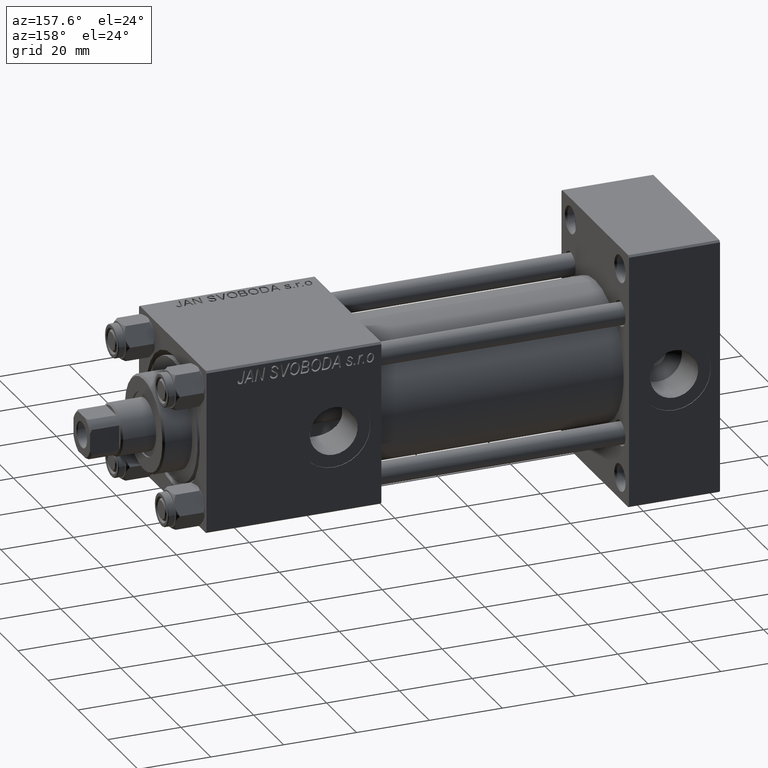
[diagram: clean part render]
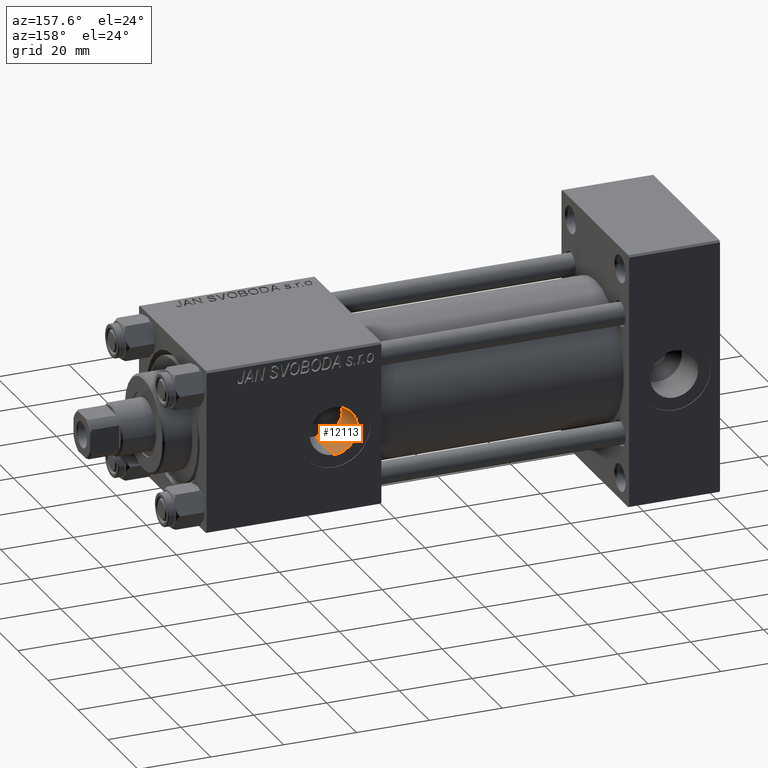
[diagram: same view with one face highlighted and labeled with its STEP entity id]
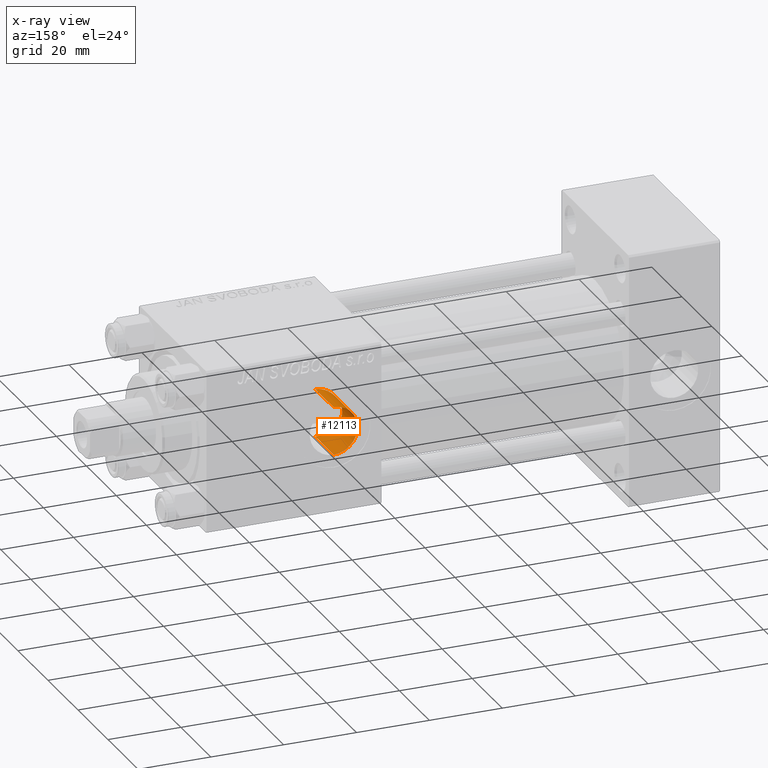
[diagram: x-ray of the same camera — body ghosted, the highlighted face saturated]
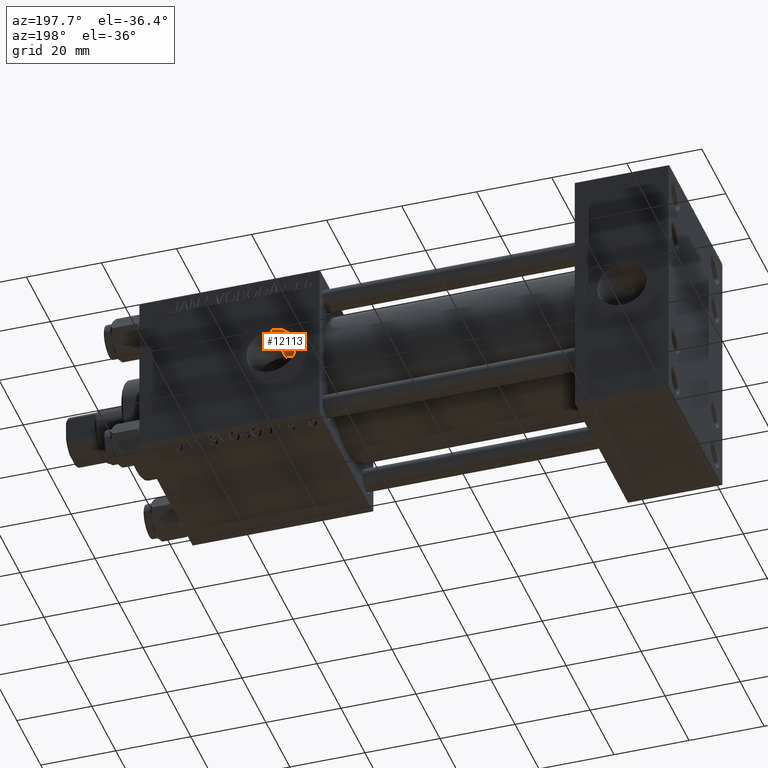
[diagram: same view with one face highlighted and labeled with its STEP entity id]
A machine part, auxiliary view. The second image highlights one B-rep face of the part: STEP entity #12113.
The next image is the same camera in x-ray: the body ghosted, the highlighted face saturated — about 0% of this face is hidden behind the body in this view.
A second angle (auxiliary view) of the same face is appended — the face is thin or edge-on in the first view.
In plain terms, the highlighted cylindrical surface (edge-blend (fillet) strip) has radius 6.58 mm, axis along (0, 1, 0).
Its self-contained STEP definition (entity closure, byte-faithful):
#697 = CARTESIAN_POINT ( 'NONE',  ( 104.9026555007573904, 10.09272257990949839, -6.491501553408994596 ) ) ;
#973 = ORIENTED_EDGE ( 'NONE', *, *, #37273, .T. ) ;
#1283 = EDGE_CURVE ( 'NONE', #11785, #24016, #19477, .T. ) ;
#2948 = ORIENTED_EDGE ( 'NONE', *, *, #29689, .T. ) ;
#5661 = CARTESIAN_POINT ( 'NONE',  ( 104.4761413384147772, 10.14795690498758773, -6.404811640278047058 ) ) ;
#6153 = CARTESIAN_POINT ( 'NONE',  ( 101.9790530252927425, 10.80966661710888133, -5.212788743056521845 ) ) ;
#7335 = EDGE_CURVE ( 'NONE', #12574, #11785, #35018, .T. ) ;
#8010 = DIRECTION ( 'NONE',  ( 0.000000000000000000, 1.000000000000000000, 0.000000000000000000 ) ) ;
#8271 = CARTESIAN_POINT ( 'NONE',  ( 105.7808140535749573, 10.03511833512689400, -6.580000000000003624 ) ) ;
#9190 = CARTESIAN_POINT ( 'NONE',  ( 99.42021085946413450, 11.99988437873642511, -0.4415083905740621595 ) ) ;
#9399 = DIRECTION ( 'NONE',  ( 0.000000000000000000, 0.000000000000000000, 1.000000000000000000 ) ) ;
#9948 = CARTESIAN_POINT ( 'NONE',  ( 103.0510431280197565, 10.45235325324470388, -5.897951781794918524 ) ) ;
#11785 = VERTEX_POINT ( 'NONE', #17322 ) ;
#12070 = CARTESIAN_POINT ( 'NONE',  ( 100.3033527628751074, 11.53738015798572114, -3.320885605816854103 ) ) ;
#12113 = ADVANCED_FACE ( 'NONE', ( #36188 ), #47791, .F. ) ;
#12574 = VERTEX_POINT ( 'NONE', #34306 ) ;
#12755 = ORIENTED_EDGE ( 'NONE', *, *, #1283, .F. ) ;
#13079 = ORIENTED_EDGE ( 'NONE', *, *, #7335, .F. ) ;
#13736 = CARTESIAN_POINT ( 'NONE',  ( 105.1190907691257337, 10.07132008303893400, -6.524508665183240907 ) ) ;
#13934 = DIRECTION ( 'NONE',  ( -0.000000000000000000, 1.000000000000000000, -0.000000000000000000 ) ) ;
#13977 = CARTESIAN_POINT ( 'NONE',  ( 101.9808194095023453, 10.80498217344098855, 5.227144681522187142 ) ) ;
#14479 = CARTESIAN_POINT ( 'NONE',  ( 103.0690707820880760, 10.45284026323419191, 5.895033264191283706 ) ) ;
#15750 = CIRCLE ( 'NONE', #17366, 6.580000000000002736 ) ;
#17008 = CARTESIAN_POINT ( 'NONE',  ( 99.46469131803905839, 11.97532927873728958, 0.8814389111818397016 ) ) ;
#17322 = CARTESIAN_POINT ( 'NONE',  ( 106.0000000000000000, 10.03511833512689755, 6.580000000000002736 ) ) ;
#17366 = AXIS2_PLACEMENT_3D ( 'NONE', #30971, #8010, #22638 ) ;
#17735 = CARTESIAN_POINT ( 'NONE',  ( 106.0000000000000000, 22.30000000000000426, 6.580000000000002736 ) ) ;
#18251 = CARTESIAN_POINT ( 'NONE',  ( 103.2609984649942731, 10.40045460118916054, 5.986622394672212799 ) ) ;
#18733 = CARTESIAN_POINT ( 'NONE',  ( 102.6939754610107087, 10.56415267499855304, 5.693150710628732014 ) ) ;
#19477 = LINE ( 'NONE', #31846, #23857 ) ;
#20804 = CARTESIAN_POINT ( 'NONE',  ( 99.59478156013234695, 11.90500205299394310, -1.522465113034440432 ) ) ;
#21050 = CARTESIAN_POINT ( 'NONE',  ( 101.0591469749664384, 11.18222718872542920, 4.365987520544764244 ) ) ;
#21552 = CARTESIAN_POINT ( 'NONE',  ( 101.4966336964843094, 10.99844243115061460, -4.802106935643950081 ) ) ;
#22540 = CARTESIAN_POINT ( 'NONE',  ( 104.2613787208470200, 10.17559587363118112, 6.361448434608369062 ) ) ;
#22638 = DIRECTION ( 'NONE',  ( 0.000000000000000000, 0.000000000000000000, 1.000000000000000000 ) ) ;
#23665 = CARTESIAN_POINT ( 'NONE',  ( 100.1004084834657704, 11.63995794439685483, -2.945230401312897150 ) ) ;
#23857 = VECTOR ( 'NONE', #27566, 1000.000000000000000 ) ;
#24016 = VERTEX_POINT ( 'NONE', #17735 ) ;
#24589 = CARTESIAN_POINT ( 'NONE',  ( 99.41979065215333833, 12.00011479239335088, 0.4352007943146000701 ) ) ;
#24841 = CARTESIAN_POINT ( 'NONE',  ( 100.3095047893206555, 11.53436838845257917, 3.330952691599677884 ) ) ;
#25337 = CARTESIAN_POINT ( 'NONE',  ( 102.6778844470711789, 10.56555453414760493, -5.695588259402676101 ) ) ;
#25918 = VECTOR ( 'NONE', #13934, 1000.000000000000000 ) ;
#26244 = CARTESIAN_POINT ( 'NONE',  ( 106.0000000000000000, 22.30000000000000426, -6.580000000000002736 ) ) ;
#27566 = DIRECTION ( 'NONE',  ( -0.000000000000000000, 1.000000000000000000, -0.000000000000000000 ) ) ;
#27697 = CARTESIAN_POINT ( 'NONE',  ( 104.2660629811777540, 10.18178878898818596, -6.351126472267992540 ) ) ;
#28626 = CARTESIAN_POINT ( 'NONE',  ( 99.76700656778703546, 11.81240356407410275, 2.153087175559377453 ) ) ;
#29087 = CARTESIAN_POINT ( 'NONE',  ( 106.0000000000000000, -18.61105048082993818, 0.000000000000000000 ) ) ;
#29631 = CARTESIAN_POINT ( 'NONE',  ( 106.0000000000000000, 10.03511833512689755, 6.580000000000002736 ) ) ;
#29689 = EDGE_CURVE ( 'NONE', #12574, #41193, #33387, .T. ) ;
#30971 = CARTESIAN_POINT ( 'NONE',  ( 106.0000000000000000, 22.30000000000000426, 0.000000000000000000 ) ) ;
#31251 = CARTESIAN_POINT ( 'NONE',  ( 101.0508812765204709, 11.18591469348257306, -4.356510094204550043 ) ) ;
#31501 = CARTESIAN_POINT ( 'NONE',  ( 99.77782898074842421, 11.80745777538545482, -2.151301849430347080 ) ) ;
#31846 = CARTESIAN_POINT ( 'NONE',  ( 106.0000000000000000, -18.61105048082993818, 6.580000000000002736 ) ) ;
#32929 = CARTESIAN_POINT ( 'NONE',  ( 105.5587345323282449, 10.04242014431498475, -6.568903955922261062 ) ) ;
#33387 = LINE ( 'NONE', #48557, #25918 ) ;
#33920 = CARTESIAN_POINT ( 'NONE',  ( 105.1257057613069037, 10.06401201544136903, 6.536546467569312568 ) ) ;
#34166 = CARTESIAN_POINT ( 'NONE',  ( 105.5626811284030850, 10.03511833512689400, 6.579999999999999183 ) ) ;
#34306 = CARTESIAN_POINT ( 'NONE',  ( 106.0000000000000000, 10.03511833512689755, -6.580000000000002736 ) ) ;
#35018 = B_SPLINE_CURVE_WITH_KNOTS ( 'NONE', 3,
 ( #36979, #8271, #32929, #13736, #697, #5661, #27697, #40025, #44551, #9948, #25337, #40766, #6153, #35308, #21552, #31251, #46672, #12070, #23665, #39092, #31501, #46916, #20804, #43124, #9190, #24589, #17008, #47840, #28626, #44047, #24841, #40275, #21050, #36481, #13977, #37468, #18733, #14479, #18251, #41259, #22540, #33920, #34166, #29631 ),
 .UNSPECIFIED., .F., .F.,
 ( 4, 2, 2, 2, 2, 2, 2, 2, 2, 2, 2, 2, 2, 2, 2, 2, 2, 2, 2, 2, 2, 4 ),
 ( 0.008590357070326631525, 0.009245933823934588541, 0.009901510577542547292, 0.01055708733115050431, 0.01121266408475846132, 0.01252381759197441352, 0.01317939434558237401, 0.01383497109919033449, 0.01514612460640625199, 0.01645727811362217297, 0.01711285486723013172, 0.01776843162083809047, 0.01907958512805401491, 0.02039073863526993241, 0.02170189214248585338, 0.02301304564970177435, 0.02432419915691769186, 0.02563535266413361630, 0.02629092941774158892, 0.02694650617134956155, 0.02825765967856552069, 0.02956881318578147289 ),
 .UNSPECIFIED. ) ;
#35281 = EDGE_LOOP ( 'NONE', ( #13079, #2948, #973, #12755 ) ) ;
#35308 = CARTESIAN_POINT ( 'NONE',  ( 101.6524179147616991, 10.93537140601615576, -4.943653615015846547 ) ) ;
#36188 = FACE_OUTER_BOUND ( 'NONE', #35281, .T. ) ;
#36481 = CARTESIAN_POINT ( 'NONE',  ( 101.6562621565032174, 10.93152481304933765, 4.960425101894940347 ) ) ;
#36979 = CARTESIAN_POINT ( 'NONE',  ( 106.0000000000000000, 10.03511833512689755, -6.580000000000002736 ) ) ;
#37273 = EDGE_CURVE ( 'NONE', #41193, #24016, #15750, .T. ) ;
#37468 = CARTESIAN_POINT ( 'NONE',  ( 102.5099310316933412, 10.62340520694157497, 5.582197786858912103 ) ) ;
#39092 = CARTESIAN_POINT ( 'NONE',  ( 99.85155364593671834, 11.76868526175016250, -2.353465099783908610 ) ) ;
#40025 = CARTESIAN_POINT ( 'NONE',  ( 103.8520087302309065, 10.26041674852086949, -6.223301258735684627 ) ) ;
#40275 = CARTESIAN_POINT ( 'NONE',  ( 100.7852272363605834, 11.30724428648134428, 4.035235631291475222 ) ) ;
#40766 = CARTESIAN_POINT ( 'NONE',  ( 102.1502487701440600, 10.74694874131891353, -5.340483106436813898 ) ) ;
#41193 = VERTEX_POINT ( 'NONE', #26244 ) ;
#41259 = CARTESIAN_POINT ( 'NONE',  ( 103.8504201772063880, 10.25569107496388987, 6.233555566934210646 ) ) ;
#43124 = CARTESIAN_POINT ( 'NONE',  ( 99.46378624166312932, 11.97582117318680162, -0.8761294634005413196 ) ) ;
#43266 = AXIS2_PLACEMENT_3D ( 'NONE', #29087, #43998, #9399 ) ;
#43998 = DIRECTION ( 'NONE',  ( -0.000000000000000000, 1.000000000000000000, -0.000000000000000000 ) ) ;
#44047 = CARTESIAN_POINT ( 'NONE',  ( 100.1050680583518897, 11.63756389590208862, 2.955633420251075894 ) ) ;
#44551 = CARTESIAN_POINT ( 'NONE',  ( 103.6469863642564491, 10.30549409996672239, -6.148672400876415089 ) ) ;
#46672 = CARTESIAN_POINT ( 'NONE',  ( 100.7822453497094983, 11.30859472950852584, -4.031762314489304444 ) ) ;
#46916 = CARTESIAN_POINT ( 'NONE',  ( 99.64958072901731612, 11.87554090734247758, -1.736573327823575985 ) ) ;
#47791 = CYLINDRICAL_SURFACE ( 'NONE', #43266, 6.580000000000002736 ) ;
#47840 = CARTESIAN_POINT ( 'NONE',  ( 99.63854847950740634, 11.88134324111738493, 1.737564006038945452 ) ) ;
#48557 = CARTESIAN_POINT ( 'NONE',  ( 106.0000000000000000, -18.61105048082993818, -6.580000000000002736 ) ) ;